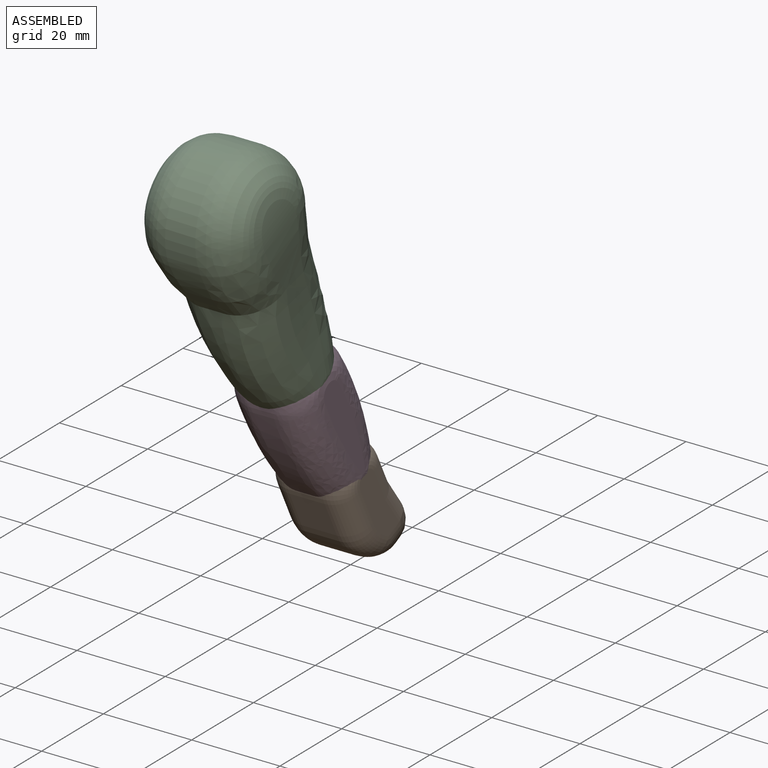
[diagram: assembled view]
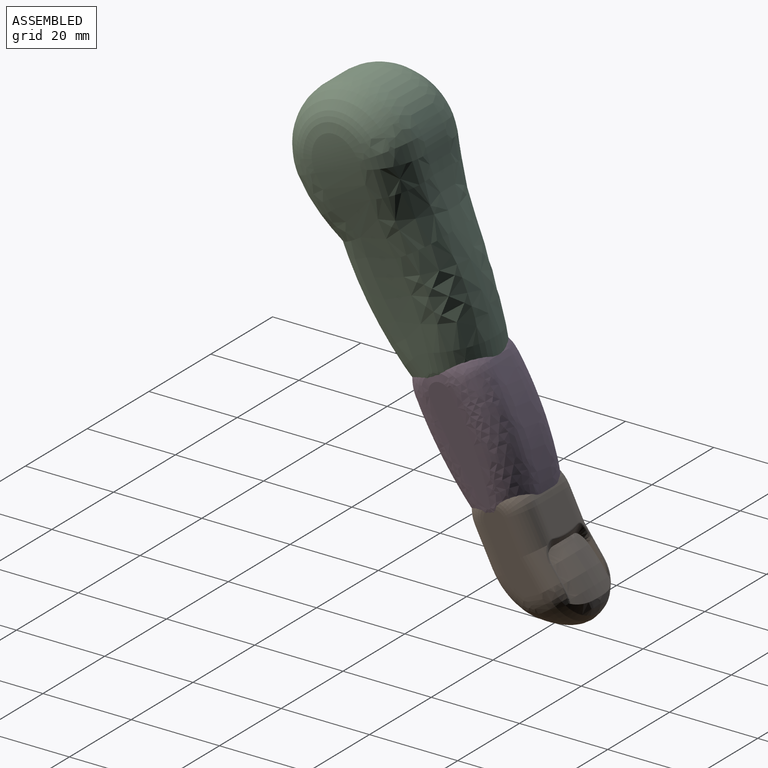
[diagram: assembled view, second angle]
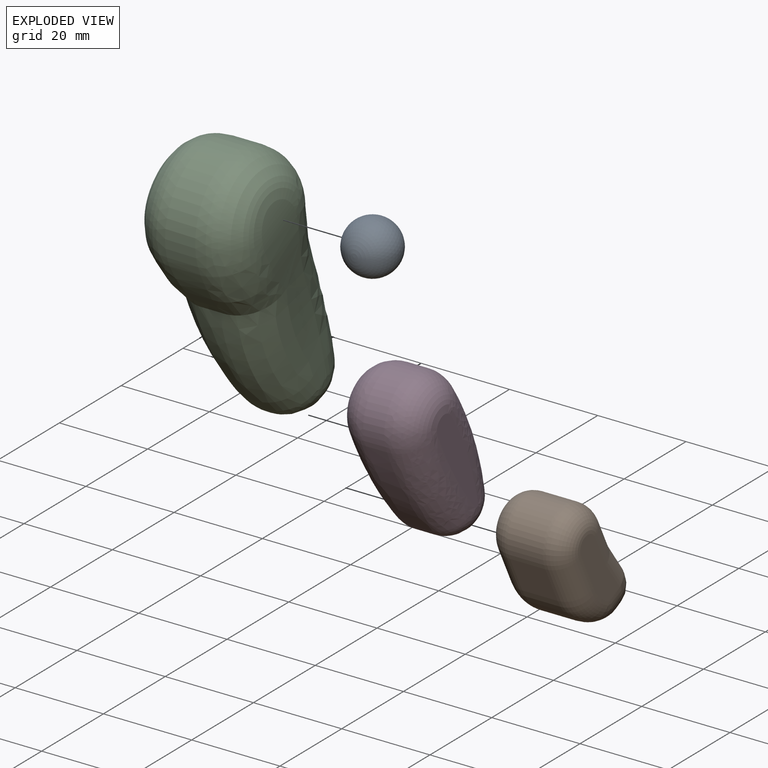
[diagram: exploded view]
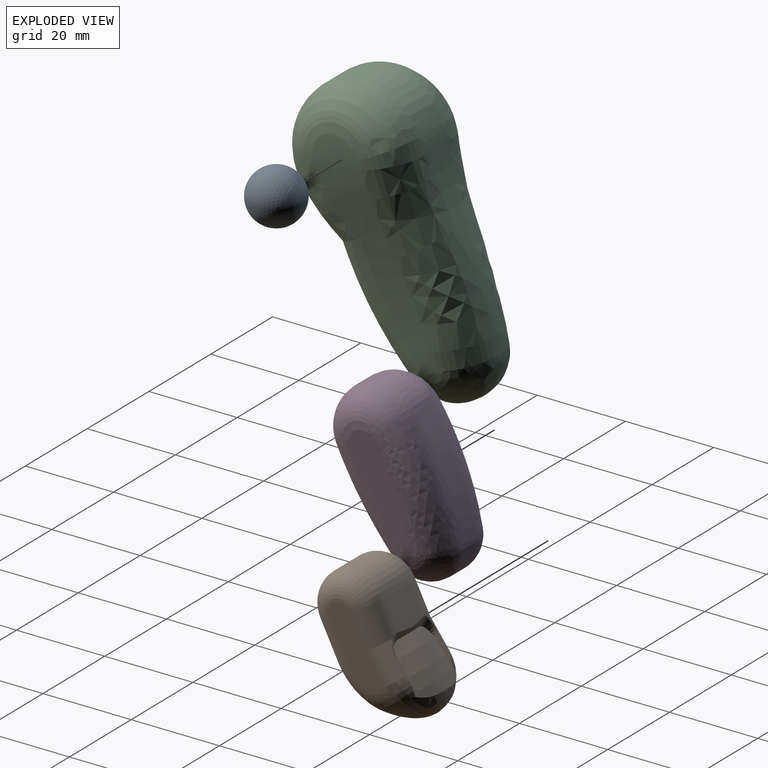
[diagram: exploded view, second angle]
ASSEMBLY  parts=4 mates=3
PART A: 16 faces, bbox 12x12x12 mm
  f0: sphere r=6mm, area 452.4mm2
  f1: cylinder r=1.5mm len=5mm, axis (1,0,0), area 38.1mm2, adj f2,f4,f9
  f2: plane 3x3mm, normal (1,0,0), area 7.1mm2, adj f1
  f3: plane 3x3mm, normal (0,-1,0), area 7.1mm2, adj f4
  f4: cylinder r=1.5mm len=5mm, axis (0,1,0), area 36.5mm2, adj f1,f3,f5,f8,f12
  f5: cylinder r=0.5mm len=3.59mm, axis (1,0,0), area 11.1mm2, adj f4,f6
  f6: plane 1x1mm, normal (1,0,0), area 0.8mm2, adj f5
  f7: plane 3x3mm, normal (-1,0,0), area 7.1mm2, adj f8
  f8: cylinder r=1.5mm len=5mm, axis (1,0,0), area 38.1mm2, adj f4,f7,f9
  f9: cylinder r=1.5mm len=5mm, axis (0,1,0), area 38.1mm2, adj f1,f8,f10
  f10: plane 3x3mm, normal (0,1,0), area 7.1mm2, adj f9
  f11: plane 1x1mm, normal (-1,0,0), area 0.8mm2, adj f12
  f12: cylinder r=0.5mm len=3.59mm, axis (1,0,0), area 11.1mm2, adj f4,f11
  f13: cylinder r=0.5mm len=10mm, axis (0,1,0), area 31.4mm2, adj f14,f15
  f14: plane 1x1mm, normal (0,1,0), area 0.8mm2, adj f13
  f15: plane 1x1mm, normal (0,-1,0), area 0.8mm2, adj f13
PART B: 51 faces, bbox 18.9x20.5x32 mm
  f0: cylinder r=5mm len=8.36mm, axis (0,-0.17,0.99), area 36.7mm2, adj f3,f4,f14,f32,f33
  f1: plane 8x7.3mm, normal (0,1,0), area 57.1mm2, adj f2,f3,f9,f37,f39,f41
  f2: cylinder r=5mm len=7.93mm, axis (0,0,-1), area 59.2mm2, adj f1,f6,f13,f15,f38,f40
  f3: cylinder r=5mm len=7.93mm, axis (0,0,1), area 59.2mm2, adj f0,f1,f14,f18,f33,f35
  f4: bspline ~9.8x9mm, area 65.3mm2, adj f0,f5,f19,f26,f31
  f5: bspline ~9.8x9mm, area 65.3mm2, adj f4,f6,f20,f26,f34
  f6: cylinder r=5mm len=8.36mm, axis (0,0.17,-0.99), area 36.7mm2, adj f2,f5,f13,f36,f38
  f7: torus R=10mm, axis (1,0,0), area 73.8mm2, adj f11,f13,f16,f24
  f8: torus R=10mm, axis (1,0,0), area 73.8mm2, adj f11,f14,f17,f21
  f9: cylinder r=7.5mm len=15mm, axis (1,0,0), area 188.5mm2, adj f1,f12,f15,f18
  f10: plane 7.68x3.43mm, normal (0,-0.64,-0.77), area 25.3mm2, adj f11,f22,f23
  f11: cylinder r=15mm len=11.49mm, axis (1,0,0), area 104.3mm2, adj f7,f8,f10,f12,f21,f24
  f12: plane 8.96x8mm, normal (0,-1,0), area 71.7mm2, adj f9,f11,f16,f17
  f13: plane 18x6.31mm, normal (-1,0,0), area 87.3mm2, adj f2,f6,f7,f15,f16,f20
  f14: plane 18x6.31mm, normal (1,0,0), area 87.3mm2, adj f0,f3,f8,f17,f18,f19
  f15: torus R=2.5mm, axis (1,0,0), area 140.2mm2, adj f2,f9,f13,f16
  f16: cylinder r=5mm len=8.96mm, axis (0,0,1), area 70.4mm2, adj f7,f12,f13,f15
  f17: cylinder r=5mm len=8.96mm, axis (0,0,-1), area 70.4mm2, adj f8,f12,f14,f18
  f18: torus R=2.5mm, axis (1,0,0), area 140.2mm2, adj f3,f9,f14,f17
  f19: cylinder r=9mm len=9mm, axis (0,-1,0), area 25.2mm2, adj f4,f14,f21,f22
  f20: cylinder r=9mm len=9mm, axis (0,-1,0), area 25.2mm2, adj f5,f13,f23,f24
  f21: bspline ~7.64x6.66mm, area 20mm2, adj f8,f11,f19,f22
  f22: bspline ~8.64x6.64mm, area 44.4mm2, adj f10,f19,f21,f23
  f23: bspline ~8.64x6.64mm, area 44.4mm2, adj f10,f20,f22,f24
  f24: bspline ~7.64x6.66mm, area 20mm2, adj f7,f11,f20,f23
  f25: cone r=14.78mm half-angle=53.7deg, axis (0,-0.17,0.99), area 12.3mm2, adj f26,f29,f30,f39
  f26: revolved ~13.59x12.5mm, area 140.5mm2, adj f4,f5,f25,f27,f28,f29,f30,f31
  f27: plane 6.35x1.3mm, normal (-0.91,0.42,0.07), area 2.2mm2, adj f26,f29,f31,f32
  f28: plane 6.35x1.3mm, normal (0.91,0.42,0.07), area 2.2mm2, adj f26,f30,f34,f36
  f29: bspline ~9.94x8.49mm, area 6.5mm2, adj f25,f26,f27,f33,f35,f37
  f30: bspline ~10.41x8.9mm, area 6.5mm2, adj f25,f26,f28,f38,f40,f41
  f31: bspline ~6.23x1.26mm, area 3.1mm2, adj f4,f26,f27,f32
  f32: cylinder r=0.5mm len=3.86mm, axis (0,-0.17,0.99), area 3.5mm2, adj f0,f27,f31,f33
  f33: bspline ~4.71x1.85mm, area 2.6mm2, adj f0,f3,f29,f32,f35
  f34: bspline ~6.23x1.26mm, area 3.1mm2, adj f5,f26,f28,f36
  f35: bspline ~2.2x1.33mm, area 0.7mm2, adj f3,f29,f33,f37
  f36: cylinder r=0.5mm len=3.86mm, axis (0,0.17,-0.99), area 3.5mm2, adj f6,f28,f34,f38
  f37: bspline ~0.71x0.51mm, area 0.1mm2, adj f1,f29,f35,f39
  f38: bspline ~4.71x1.85mm, area 2.6mm2, adj f2,f6,f30,f36,f40
  f39: bspline ~11.38x1.24mm, area 3mm2, adj f1,f25,f37,f41
  f40: bspline ~2.2x1.33mm, area 0.7mm2, adj f2,f30,f38,f41
  f41: bspline ~0.69x0.44mm, area 0.1mm2, adj f1,f30,f39,f40
  f42: cylinder r=1.5mm len=10mm, axis (1,0,0), area 94.2mm2, adj f43,f44
  f43: plane 3x3mm, normal (1,0,0), area 7.1mm2, adj f42
  f44: plane 3x3mm, normal (-1,0,0), area 7.1mm2, adj f42
  f45: cylinder r=2mm len=10mm, axis (1,0,0), area 36.7mm2, adj f46,f48,f49,f50
  f46: cylinder r=0.5mm len=10mm, axis (1,0,0), area 15.7mm2, adj f45,f47,f49,f50
  f47: cylinder r=3mm len=10mm, axis (1,0,0), area 55mm2, adj f46,f48,f49,f50
  f48: cylinder r=0.5mm len=10mm, axis (1,0,0), area 15.7mm2, adj f45,f47,f49,f50
  f49: plane 4.15x3.5mm, normal (1,0,0), area 5.4mm2, adj f45,f46,f47,f48
  f50: plane 4.15x3.5mm, normal (-1,0,0), area 5.4mm2, adj f45,f46,f47,f48
PART C: 53 faces, bbox 25.7x30.1x68.1 mm
  f0: cylinder r=9.5mm len=18.1mm, axis (-1,0,0), area 20.5mm2, adj f1,f5,f22,f33
  f1: cylinder r=94mm len=25.4mm, axis (-1,0,0), area 45.4mm2, adj f0,f2,f18,f20,f29,f31
  f2: cylinder r=57mm len=15.35mm, axis (-1,0,0), area 77.5mm2, adj f1,f3,f14,f16,f26,f27
  f3: cylinder r=14.5mm len=29mm, axis (-1,0,0), area 331.2mm2, adj f2,f4,f15,f17,f19,f28,f30,f32
  f4: cylinder r=41mm len=13.99mm, axis (-1,0,0), area 85.7mm2, adj f3,f5,f21,f23,f25,f34,f36,f37
  f5: cylinder r=60mm len=31.07mm, axis (-1,0,0), area 65.9mm2, adj f0,f4,f24,f25,f35,f37
  f6: cylinder r=200mm len=31.27mm, axis (0,1,0), area 188.3mm2, adj f7,f8,f16,f18,f23,f25
  f7: cylinder r=71mm len=4.01mm, axis (0,1,0), area 7mm2, adj f6,f20,f22,f24
  f8: cylinder r=49.92mm len=11mm, axis (0,1,0), area 78.7mm2, adj f6,f9,f14,f15,f19,f21
  f9: cylinder r=54.22mm len=11mm, axis (0,1,0), area 57.1mm2, adj f8,f17
  f10: cylinder r=200mm len=31.27mm, axis (0,1,0), area 188.3mm2, adj f11,f13,f27,f29,f36,f37
  f11: cylinder r=71mm len=4.01mm, axis (0,1,0), area 7mm2, adj f10,f31,f33,f35
  f12: cylinder r=54.22mm len=11mm, axis (0,1,0), area 57.1mm2, adj f13,f30
  f13: cylinder r=49.92mm len=11mm, axis (0,1,0), area 78.7mm2, adj f10,f12,f26,f28,f32,f34
  f14: bspline ~17.95x11.94mm, area 74.3mm2, adj f2,f8,f15,f16
  f15: bspline ~9.22x9.03mm, area 42.9mm2, adj f3,f8,f14,f17
  f16: bspline ~20.9x11.33mm, area 162mm2, adj f2,f6,f14,f18
  f17: bspline ~29x16.25mm, area 489.5mm2, adj f3,f9,f15,f19
  f18: bspline ~42.22x13.48mm, area 293.7mm2, adj f1,f6,f16,f20
  f19: bspline ~9x9mm, area 3.2mm2, adj f3,f8,f17,f21
  f20: bspline ~20.7x12.82mm, area 52.4mm2, adj f1,f7,f18,f22
  f21: bspline ~18.58x10.65mm, area 116.1mm2, adj f4,f8,f19,f23
  f22: bspline ~18.95x9.23mm, area 215mm2, adj f0,f7,f20,f24
  f23: bspline ~15.91x12.59mm, area 96.8mm2, adj f4,f6,f21,f25
  f24: bspline ~22.12x14.36mm, area 56.4mm2, adj f5,f7,f22,f25
  f25: bspline ~41.88x13.03mm, area 373.6mm2, adj f4,f5,f6,f23,f24
  f26: bspline ~17.95x11.94mm, area 74.3mm2, adj f2,f13,f27,f28
  f27: bspline ~26.13x12.26mm, area 162mm2, adj f2,f10,f26,f29
  f28: bspline ~9.22x9.03mm, area 42.9mm2, adj f3,f13,f26,f30
  f29: bspline ~42.22x13.48mm, area 293.7mm2, adj f1,f10,f27,f31
  f30: bspline ~29x16.25mm, area 489.5mm2, adj f3,f12,f28,f32
  f31: bspline ~20.7x12.82mm, area 52.4mm2, adj f1,f11,f29,f33
  f32: bspline ~9.01x9mm, area 3.2mm2, adj f3,f13,f30,f34
  f33: bspline ~18.61x9.23mm, area 215mm2, adj f0,f11,f31,f35
  f34: bspline ~18.58x10.65mm, area 116.1mm2, adj f4,f13,f32,f36
  f35: bspline ~22.12x14.36mm, area 56.4mm2, adj f5,f11,f33,f37
  f36: bspline ~15.91x12.59mm, area 96.8mm2, adj f4,f10,f34,f37
  f37: bspline ~41.88x13.03mm, area 373.6mm2, adj f4,f5,f10,f35,f36
  f38: cylinder r=1.5mm len=10mm, axis (1,0,0), area 94.2mm2, adj f39,f40
  f39: plane 3x3mm, normal (1,0,0), area 7.1mm2, adj f38
  f40: plane 3x3mm, normal (-1,0,0), area 7.1mm2, adj f38
  f41: cylinder r=0.5mm len=10mm, axis (1,0,0), area 31.4mm2, adj f42,f43
  f42: plane 1x1mm, normal (1,0,0), area 0.8mm2, adj f41
  f43: plane 1x1mm, normal (-1,0,0), area 0.8mm2, adj f41
  f44: cylinder r=1.5mm len=10mm, axis (1,0,0), area 94.2mm2, adj f45,f46
  f45: plane 3x3mm, normal (1,0,0), area 7.1mm2, adj f44
  f46: plane 3x3mm, normal (-1,0,0), area 7.1mm2, adj f44
  f47: cylinder r=3mm len=10mm, axis (1,0,0), area 68.1mm2, adj f48,f50,f51,f52
  f48: cylinder r=0.5mm len=10mm, axis (1,0,0), area 15.7mm2, adj f47,f49,f51,f52
  f49: cylinder r=2mm len=10mm, axis (1,0,0), area 45.4mm2, adj f48,f50,f51,f52
  f50: cylinder r=0.5mm len=10mm, axis (1,0,0), area 15.7mm2, adj f47,f49,f51,f52
  f51: plane 4.36x4.36mm, normal (1,0,0), area 6.5mm2, adj f47,f48,f49,f50
  f52: plane 4.36x4.36mm, normal (-1,0,0), area 6.5mm2, adj f47,f48,f49,f50
PART D: 30 faces, bbox 18.9x19.6x44.1 mm
  f0: bspline ~25.37x9.17mm, area 272.4mm2, adj f1,f3,f10,f13
  f1: bspline ~14.48x7.3mm, area 141.3mm2, adj f0,f2,f11,f13
  f2: bspline ~38.86x12.39mm, area 280.3mm2, adj f1,f3,f8,f13
  f3: bspline ~18.91x9.43mm, area 227.9mm2, adj f0,f2,f9,f13
  f4: bspline ~40.43x10.54mm, area 272.4mm2, adj f5,f7,f10,f12
  f5: bspline ~18.91x9.43mm, area 227.9mm2, adj f4,f6,f9,f12
  f6: bspline ~38.86x12.39mm, area 280.3mm2, adj f5,f7,f8,f12
  f7: bspline ~14.48x7.3mm, area 141.3mm2, adj f4,f6,f11,f12
  f8: cylinder r=65mm len=26.27mm, axis (-1,0,0), area 118.8mm2, adj f2,f6,f9,f11
  f9: cylinder r=9.5mm len=18.91mm, axis (-1,0,0), area 134mm2, adj f3,f5,f8,f10
  f10: cylinder r=85mm len=25.37mm, axis (-1,0,0), area 114.4mm2, adj f0,f4,f9,f11
  f11: cylinder r=7.5mm len=14.48mm, axis (-1,0,0), area 82.1mm2, adj f1,f7,f8,f10
  f12: plane 26x5.55mm, normal (1,0,-0.01), area 111mm2, adj f4,f5,f6,f7
  f13: plane 26x5.55mm, normal (-1,0,-0.01), area 111mm2, adj f0,f1,f2,f3
  f14: cylinder r=1.5mm len=10mm, axis (1,0,0), area 94.2mm2, adj f15,f16
  f15: plane 3x3mm, normal (1,0,0), area 7.1mm2, adj f14
  f16: plane 3x3mm, normal (-1,0,0), area 7.1mm2, adj f14
  f17: cylinder r=1.5mm len=10mm, axis (1,0,0), area 94.2mm2, adj f18,f19
  f18: plane 3x3mm, normal (1,0,0), area 7.1mm2, adj f17
  f19: plane 3x3mm, normal (-1,0,0), area 7.1mm2, adj f17
  f20: cylinder r=0.75mm len=10mm, axis (1,0,0), area 47.1mm2, adj f21,f22
  f21: plane 1.5x1.5mm, normal (1,0,0), area 1mm2, adj f20,f23
  f22: plane 1.5x1.5mm, normal (-1,0,0), area 1mm2, adj f20,f23
  f23: cylinder r=0.5mm len=10mm, axis (1,0,0), area 31.4mm2, adj f21,f22
  f24: cylinder r=3mm len=10mm, axis (1,0,0), area 57.6mm2, adj f25,f27,f28,f29
  f25: cylinder r=0.5mm len=10mm, axis (1,0,0), area 15.7mm2, adj f24,f26,f28,f29
  f26: cylinder r=2mm len=10mm, axis (1,0,0), area 38.4mm2, adj f25,f27,f28,f29
  f27: cylinder r=0.5mm len=10mm, axis (1,0,0), area 15.7mm2, adj f24,f26,f28,f29
  f28: plane 4.36x3.5mm, normal (1,0,0), area 5.6mm2, adj f24,f25,f26,f27
  f29: plane 4.36x3.5mm, normal (-1,0,0), area 5.6mm2, adj f24,f25,f26,f27
PLACE A at identity fixed
PLACE B rot(axis=(1,0,0),26.6deg) t=(0,32.59,-67.02)mm
PLACE C rot(axis=(1,0,0),26.6deg) t=(0,-0.67,-2.01)mm
PLACE D rot(axis=(1,0,0),28deg) t=(0,20.43,-44.08)mm
MATE revolute C.f38 <-> D.f17  axis (-1,0,0) through (5,21.46,-40.7)mm
MATE revolute B.f42 <-> D.f14  axis (-1,0,0) through (5,33.26,-65.01)mm
MATE revolute A.f1 <-> C.f44  axis (-1,0,0) through (5,0,0)mm
